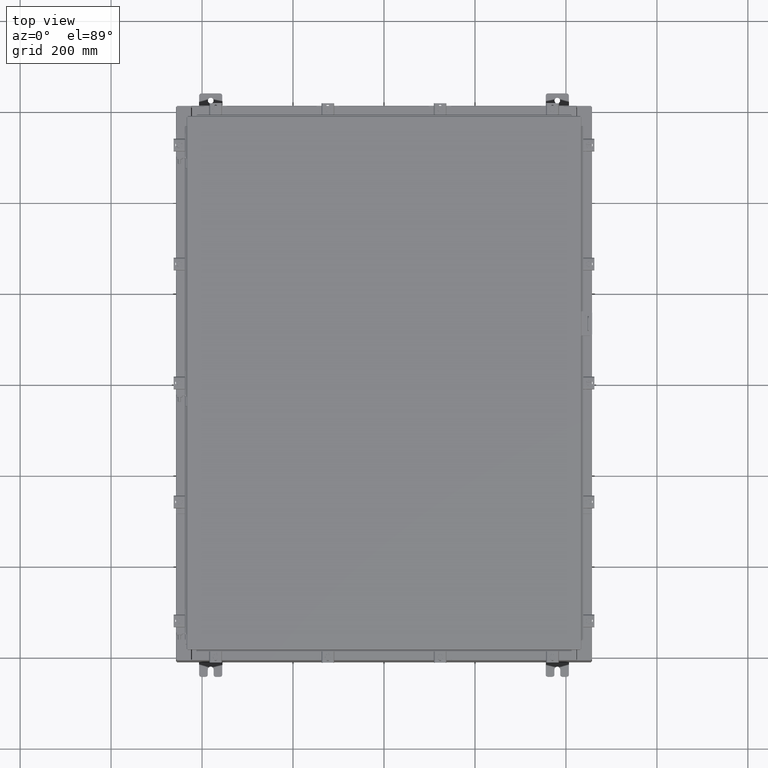
[diagram: clean part render]
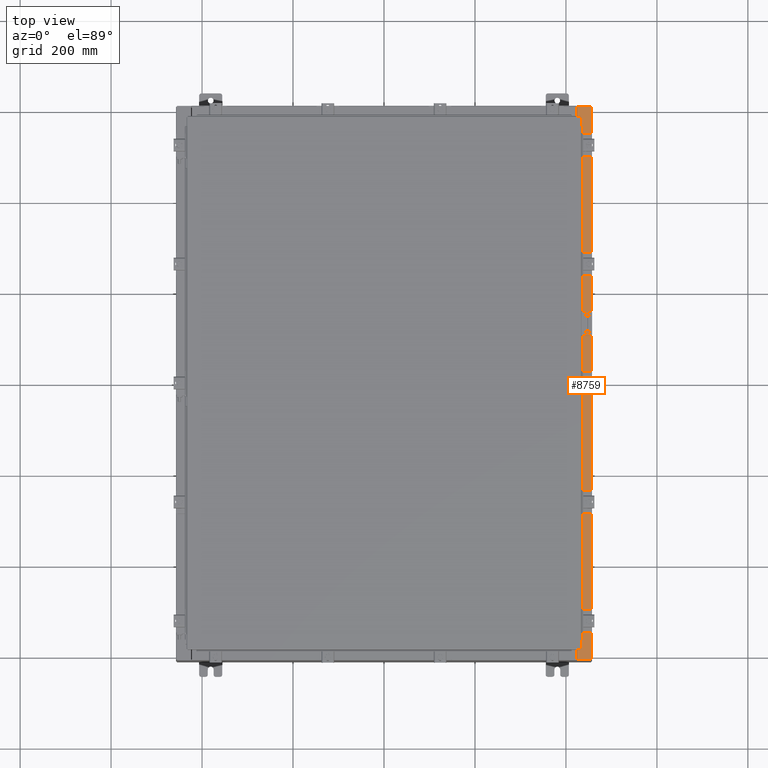
[diagram: same view with one face highlighted and labeled with its STEP entity id]
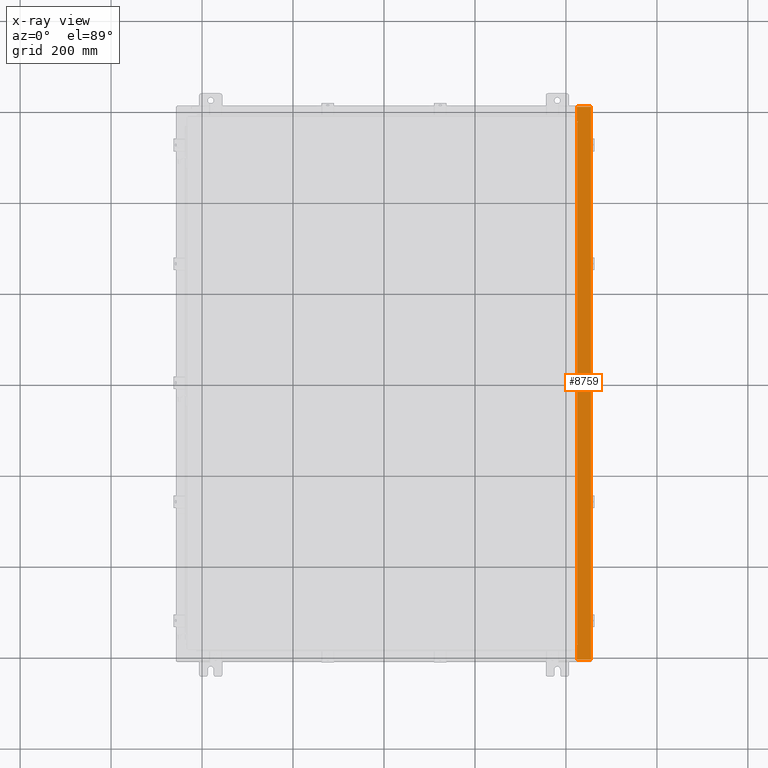
[diagram: x-ray of the same camera — body ghosted, the highlighted face saturated]
A machine part, top view. The second image highlights one B-rep face of the part: STEP entity #8759.
The next image is the same camera in x-ray: the body ghosted, the highlighted face saturated — about 0% of this face is hidden behind the body in this view.
In plain terms, the highlighted planar face has unit normal (-0, 0, -1).
Its self-contained STEP definition (entity closure, byte-faithful):
#39 = CARTESIAN_POINT ( 'NONE',  ( 17.91230000000003000, -23.92529999999998900, 9.925300000000001800 ) ) ;
#548 = VECTOR ( 'NONE', #11805, 39.37007874015748100 ) ;
#686 = EDGE_CURVE ( 'NONE', #3353, #11380, #8390, .T. ) ;
#1159 = CARTESIAN_POINT ( 'NONE',  ( 5.335691853495976800E-014, 0.0000000000000000000, 9.925300000000099500 ) ) ;
#1223 = LINE ( 'NONE', #16095, #548 ) ;
#1330 = CARTESIAN_POINT ( 'NONE',  ( 16.71270000000003400, 22.59374999999995400, 9.925300000000010700 ) ) ;
#1452 = EDGE_CURVE ( 'NONE', #3129, #22483, #16881, .T. ) ;
#1638 = ORIENTED_EDGE ( 'NONE', *, *, #21841, .F. ) ;
#1859 = DIRECTION ( 'NONE',  ( 5.349571789159788500E-015, 0.0000000000000000000, 1.000000000000000000 ) ) ;
#1877 = CARTESIAN_POINT ( 'NONE',  ( 17.91230000000003000, -23.92529999999998900, 9.925300000000001800 ) ) ;
#1895 = ORIENTED_EDGE ( 'NONE', *, *, #22293, .F. ) ;
#2275 = VECTOR ( 'NONE', #25774, 39.37007874015748100 ) ;
#2472 = DIRECTION ( 'NONE',  ( -0.0000000000000000000, 1.000000000000000000, -0.0000000000000000000 ) ) ;
#2775 = VERTEX_POINT ( 'NONE', #21720 ) ;
#3129 = VERTEX_POINT ( 'NONE', #26915 ) ;
#3218 = VECTOR ( 'NONE', #12728, 39.37007874015748100 ) ;
#3282 = DIRECTION ( 'NONE',  ( -1.000000000000000000, 0.0000000000000000000, 5.349571789159788500E-015 ) ) ;
#3342 = VECTOR ( 'NONE', #2472, 39.37007874015748100 ) ;
#3353 = VERTEX_POINT ( 'NONE', #24845 ) ;
#4232 = CARTESIAN_POINT ( 'NONE',  ( 16.75005000000003400, -22.59374999999998900, 9.925300000000010700 ) ) ;
#4481 = AXIS2_PLACEMENT_3D ( 'NONE', #16653, #1859, #10125 ) ;
#5432 = EDGE_CURVE ( 'NONE', #26260, #19874, #7950, .T. ) ;
#5752 = ORIENTED_EDGE ( 'NONE', *, *, #6125, .F. ) ;
#5772 = CARTESIAN_POINT ( 'NONE',  ( 16.69970000000003200, -5.350181231484365000E-030, 9.925300000000008900 ) ) ;
#5998 = ORIENTED_EDGE ( 'NONE', *, *, #18914, .T. ) ;
#6105 = ORIENTED_EDGE ( 'NONE', *, *, #16937, .F. ) ;
#6125 = EDGE_CURVE ( 'NONE', #19874, #2775, #16576, .T. ) ;
#6443 = AXIS2_PLACEMENT_3D ( 'NONE', #1159, #9599, #3282 ) ;
#6908 = EDGE_CURVE ( 'NONE', #3353, #23259, #1223, .T. ) ;
#6913 = CARTESIAN_POINT ( 'NONE',  ( 16.75005000000003400, -22.59374999999998900, 9.925300000000008900 ) ) ;
#7044 = CARTESIAN_POINT ( 'NONE',  ( 16.75005000000003400, 22.63109999999995000, 9.925300000000010700 ) ) ;
#7558 = DIRECTION ( 'NONE',  ( 1.000000000000000000, 8.144358738339257800E-032, -5.349571789159789300E-015 ) ) ;
#7950 = LINE ( 'NONE', #10874, #2275 ) ;
#7993 = EDGE_CURVE ( 'NONE', #20350, #16012, #12502, .T. ) ;
#8031 = ORIENTED_EDGE ( 'NONE', *, *, #23348, .T. ) ;
#8161 = VECTOR ( 'NONE', #24964, 39.37007874015748100 ) ;
#8390 = LINE ( 'NONE', #1877, #22722 ) ;
#8432 = CARTESIAN_POINT ( 'NONE',  ( 16.75005000000003400, 22.59374999999995400, 9.925300000000008900 ) ) ;
#8759 = ADVANCED_FACE ( 'NONE', ( #22513 ), #13893, .F. ) ;
#8979 = ORIENTED_EDGE ( 'NONE', *, *, #18555, .F. ) ;
#9599 = DIRECTION ( 'NONE',  ( -5.349571789159788500E-015, 0.0000000000000000000, -1.000000000000000000 ) ) ;
#9696 = CARTESIAN_POINT ( 'NONE',  ( 5.335691853495976800E-014, -23.92529999999998900, 9.925300000000099500 ) ) ;
#9954 = VERTEX_POINT ( 'NONE', #21978 ) ;
#10125 = DIRECTION ( 'NONE',  ( 1.000000000000000000, 0.0000000000000000000, 0.0000000000000000000 ) ) ;
#10874 = CARTESIAN_POINT ( 'NONE',  ( 16.71270000000003400, 22.59374999999995400, 9.925300000000010700 ) ) ;
#11380 = VERTEX_POINT ( 'NONE', #39 ) ;
#11662 = LINE ( 'NONE', #23015, #22990 ) ;
#11805 = DIRECTION ( 'NONE',  ( -1.000000000000000000, 0.0000000000000000000, 5.349571789159789300E-015 ) ) ;
#12307 = CARTESIAN_POINT ( 'NONE',  ( 16.69970000000003200, -23.92529999999998900, 9.925300000000008900 ) ) ;
#12502 = LINE ( 'NONE', #20081, #18196 ) ;
#12574 = VECTOR ( 'NONE', #24082, 39.37007874015748100 ) ;
#12578 = DIRECTION ( 'NONE',  ( 5.349571789159788500E-015, 0.0000000000000000000, 1.000000000000000000 ) ) ;
#12728 = DIRECTION ( 'NONE',  ( -1.000000000000000000, 0.0000000000000000000, 0.0000000000000000000 ) ) ;
#13460 = ORIENTED_EDGE ( 'NONE', *, *, #686, .F. ) ;
#13828 = LINE ( 'NONE', #5772, #8161 ) ;
#13893 = PLANE ( 'NONE',  #6443 ) ;
#13976 = DIRECTION ( 'NONE',  ( -0.0000000000000000000, -1.000000000000000000, -0.0000000000000000000 ) ) ;
#14677 = LINE ( 'NONE', #21657, #3342 ) ;
#15531 = AXIS2_PLACEMENT_3D ( 'NONE', #25315, #12578, #27458 ) ;
#15716 = EDGE_LOOP ( 'NONE', ( #8979, #25751, #5998, #13460, #19663, #8031, #1638, #5752, #18041, #6105, #1895, #23112 ) ) ;
#15875 = LINE ( 'NONE', #4232, #3218 ) ;
#16012 = VERTEX_POINT ( 'NONE', #12307 ) ;
#16095 = CARTESIAN_POINT ( 'NONE',  ( 5.335691853495976800E-014, 23.92529999999998600, 9.925300000000099500 ) ) ;
#16129 = CARTESIAN_POINT ( 'NONE',  ( 16.69970000000003200, 23.92529999999998200, 9.925300000000008900 ) ) ;
#16576 = CIRCLE ( 'NONE', #15531, 0.01867499999999949400 ) ;
#16653 = CARTESIAN_POINT ( 'NONE',  ( 16.75005000000003400, -22.61242499999998800, 9.925300000000010700 ) ) ;
#16881 = CIRCLE ( 'NONE', #4481, 0.01867499999999949400 ) ;
#16937 = EDGE_CURVE ( 'NONE', #9954, #26260, #14677, .T. ) ;
#17968 = DIRECTION ( 'NONE',  ( -3.203758888773074600E-031, -1.000000000000000000, 1.713873817065035100E-045 ) ) ;
#18041 = ORIENTED_EDGE ( 'NONE', *, *, #5432, .F. ) ;
#18196 = VECTOR ( 'NONE', #17968, 39.37007874015748100 ) ;
#18555 = EDGE_CURVE ( 'NONE', #20350, #3129, #11662, .T. ) ;
#18749 = CARTESIAN_POINT ( 'NONE',  ( 16.69970000000003200, 22.63109999999995000, 9.925300000000008900 ) ) ;
#18914 = EDGE_CURVE ( 'NONE', #16012, #11380, #26297, .T. ) ;
#19663 = ORIENTED_EDGE ( 'NONE', *, *, #6908, .T. ) ;
#19874 = VERTEX_POINT ( 'NONE', #8432 ) ;
#20081 = CARTESIAN_POINT ( 'NONE',  ( 16.69970000000003200, -5.350181231484365000E-030, 9.925300000000008900 ) ) ;
#20350 = VERTEX_POINT ( 'NONE', #24806 ) ;
#20664 = VECTOR ( 'NONE', #7558, 39.37007874015748100 ) ;
#21657 = CARTESIAN_POINT ( 'NONE',  ( 16.71270000000003400, -22.59374999999997900, 9.925300000000010700 ) ) ;
#21720 = CARTESIAN_POINT ( 'NONE',  ( 16.75005000000003400, 22.63109999999995000, 9.925300000000008900 ) ) ;
#21841 = EDGE_CURVE ( 'NONE', #2775, #23438, #23870, .T. ) ;
#21978 = CARTESIAN_POINT ( 'NONE',  ( 16.71270000000003400, -22.59374999999998900, 9.925300000000010700 ) ) ;
#22293 = EDGE_CURVE ( 'NONE', #22483, #9954, #15875, .T. ) ;
#22483 = VERTEX_POINT ( 'NONE', #6913 ) ;
#22513 = FACE_OUTER_BOUND ( 'NONE', #15716, .T. ) ;
#22722 = VECTOR ( 'NONE', #13976, 39.37007874015748100 ) ;
#22990 = VECTOR ( 'NONE', #25168, 39.37007874015748100 ) ;
#23015 = CARTESIAN_POINT ( 'NONE',  ( 16.69970000000003200, -22.63109999999998600, 9.925300000000010700 ) ) ;
#23112 = ORIENTED_EDGE ( 'NONE', *, *, #1452, .F. ) ;
#23259 = VERTEX_POINT ( 'NONE', #16129 ) ;
#23348 = EDGE_CURVE ( 'NONE', #23259, #23438, #13828, .T. ) ;
#23438 = VERTEX_POINT ( 'NONE', #18749 ) ;
#23870 = LINE ( 'NONE', #7044, #12574 ) ;
#24082 = DIRECTION ( 'NONE',  ( -1.000000000000000000, 0.0000000000000000000, 0.0000000000000000000 ) ) ;
#24806 = CARTESIAN_POINT ( 'NONE',  ( 16.69970000000003200, -22.63109999999998600, 9.925300000000008900 ) ) ;
#24845 = CARTESIAN_POINT ( 'NONE',  ( 17.91230000000003000, 23.92529999999998600, 9.925300000000001800 ) ) ;
#24964 = DIRECTION ( 'NONE',  ( -3.203758888773074600E-031, -1.000000000000000000, 1.713873817065035100E-045 ) ) ;
#25168 = DIRECTION ( 'NONE',  ( 1.000000000000000000, 0.0000000000000000000, 0.0000000000000000000 ) ) ;
#25315 = CARTESIAN_POINT ( 'NONE',  ( 16.75005000000003400, 22.61242499999995200, 9.925300000000010700 ) ) ;
#25751 = ORIENTED_EDGE ( 'NONE', *, *, #7993, .T. ) ;
#25774 = DIRECTION ( 'NONE',  ( 1.000000000000000000, 0.0000000000000000000, 0.0000000000000000000 ) ) ;
#26260 = VERTEX_POINT ( 'NONE', #1330 ) ;
#26297 = LINE ( 'NONE', #9696, #20664 ) ;
#26915 = CARTESIAN_POINT ( 'NONE',  ( 16.75005000000003400, -22.63109999999998600, 9.925300000000008900 ) ) ;
#27458 = DIRECTION ( 'NONE',  ( 1.000000000000000000, 0.0000000000000000000, 0.0000000000000000000 ) ) ;